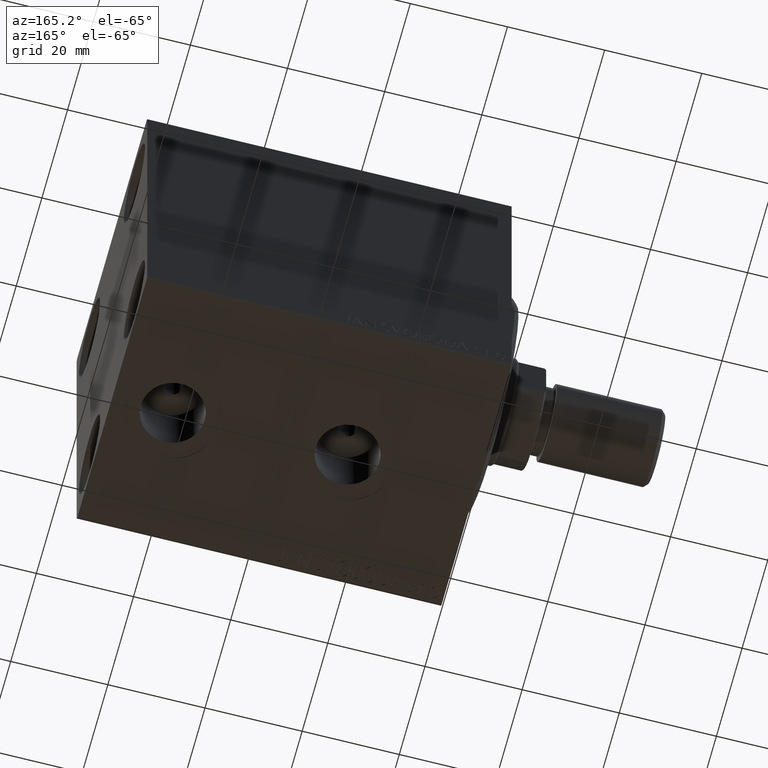
[diagram: clean part render]
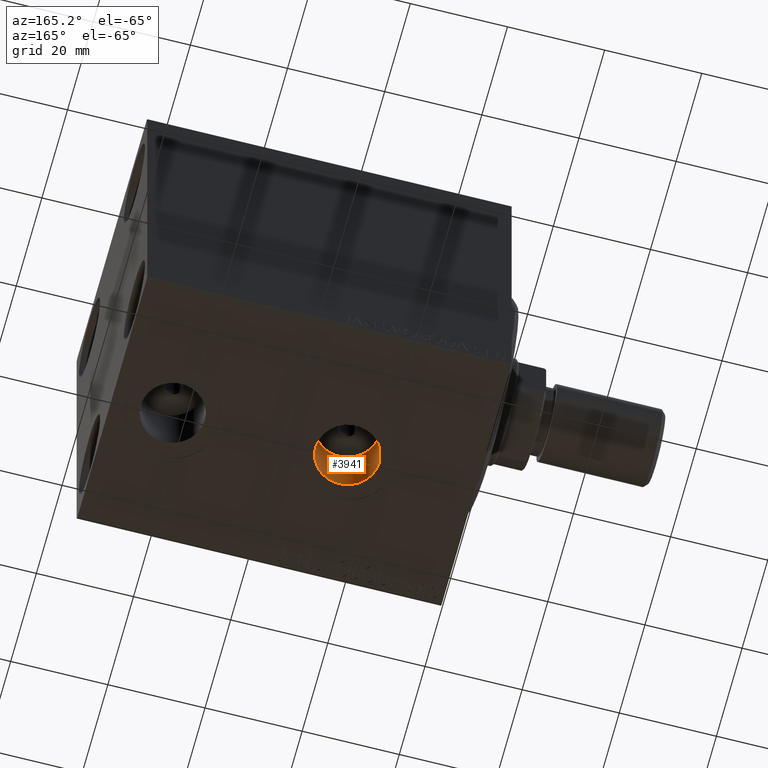
[diagram: same view with one face highlighted and labeled with its STEP entity id]
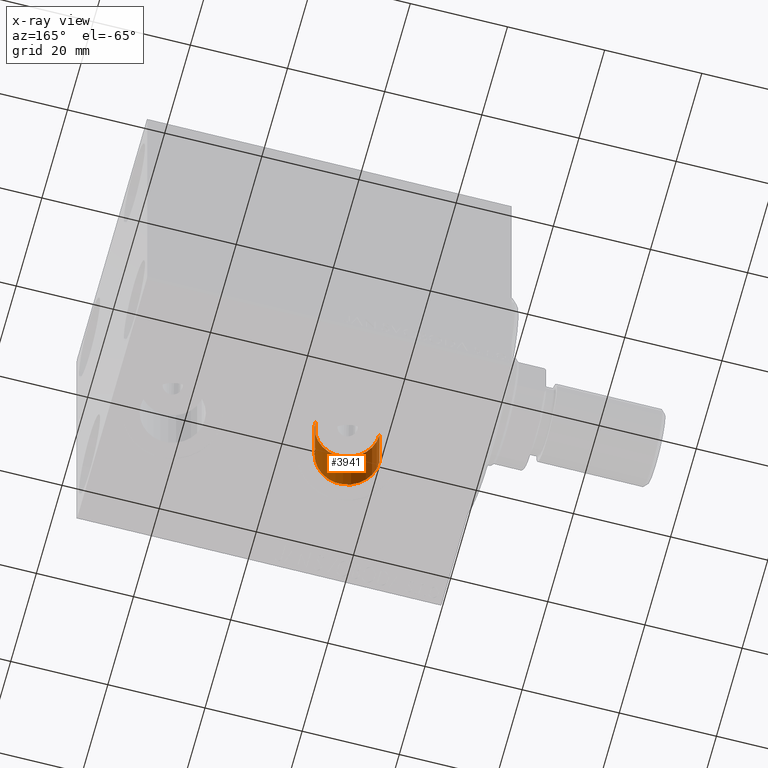
[diagram: x-ray of the same camera — body ghosted, the highlighted face saturated]
A machine part, auxiliary view. The second image highlights one B-rep face of the part: STEP entity #3941.
The next image is the same camera in x-ray: the body ghosted, the highlighted face saturated — about 0% of this face is hidden behind the body in this view.
In plain terms, the highlighted cylindrical surface (edge-blend (fillet) strip) has radius 6.58 mm, axis along (-0, -0, -1).
Its self-contained STEP definition (entity closure, byte-faithful):
#3093 = ORIENTED_EDGE ( 'NONE', *, *, #22657, .F. ) ;
#3941 = ADVANCED_FACE ( 'NONE', ( #39396 ), #12423, .F. ) ;
#5227 = DIRECTION ( 'NONE',  ( -0.000000000000000000, -0.000000000000000000, -1.000000000000000000 ) ) ;
#6810 = EDGE_LOOP ( 'NONE', ( #43539, #22880, #28744, #3093 ) ) ;
#8602 = AXIS2_PLACEMENT_3D ( 'NONE', #32609, #15534, #29242 ) ;
#10505 = CIRCLE ( 'NONE', #21985, 6.580000000000002736 ) ;
#11567 = VERTEX_POINT ( 'NONE', #34370 ) ;
#11710 = DIRECTION ( 'NONE',  ( 0.000000000000000000, 0.000000000000000000, -1.000000000000000000 ) ) ;
#12423 = CYLINDRICAL_SURFACE ( 'NONE', #40540, 6.580000000000002736 ) ;
#12790 = DIRECTION ( 'NONE',  ( -0.000000000000000000, -0.000000000000000000, -1.000000000000000000 ) ) ;
#14938 = VERTEX_POINT ( 'NONE', #20915 ) ;
#15534 = DIRECTION ( 'NONE',  ( 0.000000000000000000, 0.000000000000000000, -1.000000000000000000 ) ) ;
#17050 = LINE ( 'NONE', #33234, #32800 ) ;
#18022 = CARTESIAN_POINT ( 'NONE',  ( 33.07999999999999829, -1.921168617569957634E-15, -37.39999999999999858 ) ) ;
#18942 = CARTESIAN_POINT ( 'NONE',  ( 26.50000000000000000, -2.726986211408916281E-15, -24.49999999999999289 ) ) ;
#19155 = VERTEX_POINT ( 'NONE', #18022 ) ;
#20240 = EDGE_CURVE ( 'NONE', #35207, #14938, #10505, .T. ) ;
#20288 = CARTESIAN_POINT ( 'NONE',  ( 33.07999999999999829, -1.921168617569958028E-15, -24.49999999999999289 ) ) ;
#20915 = CARTESIAN_POINT ( 'NONE',  ( 19.91999999999999815, -2.726986211408916281E-15, -24.49999999999999289 ) ) ;
#21810 = CARTESIAN_POINT ( 'NONE',  ( 26.50000000000000000, -2.726986211408916281E-15, -24.49999999999999289 ) ) ;
#21985 = AXIS2_PLACEMENT_3D ( 'NONE', #21810, #11710, #39559 ) ;
#22657 = EDGE_CURVE ( 'NONE', #14938, #11567, #17050, .T. ) ;
#22880 = ORIENTED_EDGE ( 'NONE', *, *, #41460, .T. ) ;
#23654 = DIRECTION ( 'NONE',  ( -0.000000000000000000, -0.000000000000000000, -1.000000000000000000 ) ) ;
#23873 = LINE ( 'NONE', #20288, #40351 ) ;
#28744 = ORIENTED_EDGE ( 'NONE', *, *, #33088, .T. ) ;
#29229 = CARTESIAN_POINT ( 'NONE',  ( 33.07999999999999829, -1.921168617569957634E-15, -24.49999999999999289 ) ) ;
#29242 = DIRECTION ( 'NONE',  ( -1.000000000000000000, 0.000000000000000000, 0.000000000000000000 ) ) ;
#29702 = DIRECTION ( 'NONE',  ( -1.000000000000000000, 0.000000000000000000, 0.000000000000000000 ) ) ;
#32609 = CARTESIAN_POINT ( 'NONE',  ( 26.50000000000000000, -2.726986211408916281E-15, -37.39999999999999858 ) ) ;
#32800 = VECTOR ( 'NONE', #12790, 1000.000000000000000 ) ;
#33088 = EDGE_CURVE ( 'NONE', #19155, #11567, #38721, .T. ) ;
#33234 = CARTESIAN_POINT ( 'NONE',  ( 19.91999999999999815, -2.726986211408916281E-15, -24.49999999999999289 ) ) ;
#34370 = CARTESIAN_POINT ( 'NONE',  ( 19.91999999999999815, -2.726986211408916281E-15, -37.39999999999999858 ) ) ;
#35207 = VERTEX_POINT ( 'NONE', #29229 ) ;
#38721 = CIRCLE ( 'NONE', #8602, 6.580000000000002736 ) ;
#39396 = FACE_OUTER_BOUND ( 'NONE', #6810, .T. ) ;
#39559 = DIRECTION ( 'NONE',  ( -1.000000000000000000, 0.000000000000000000, 0.000000000000000000 ) ) ;
#40351 = VECTOR ( 'NONE', #23654, 1000.000000000000000 ) ;
#40540 = AXIS2_PLACEMENT_3D ( 'NONE', #18942, #5227, #29702 ) ;
#41460 = EDGE_CURVE ( 'NONE', #35207, #19155, #23873, .T. ) ;
#43539 = ORIENTED_EDGE ( 'NONE', *, *, #20240, .F. ) ;